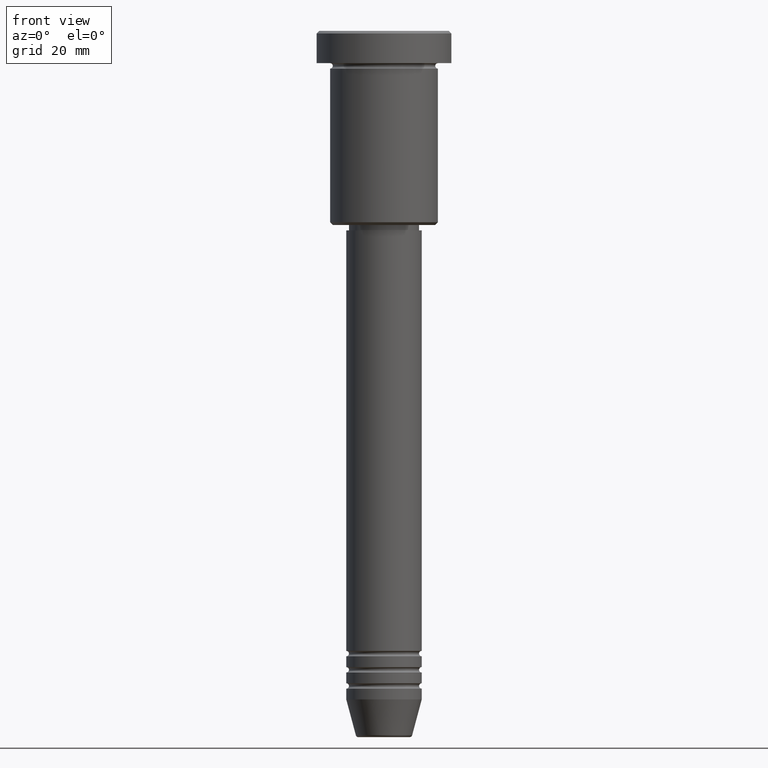
[diagram: clean part render]
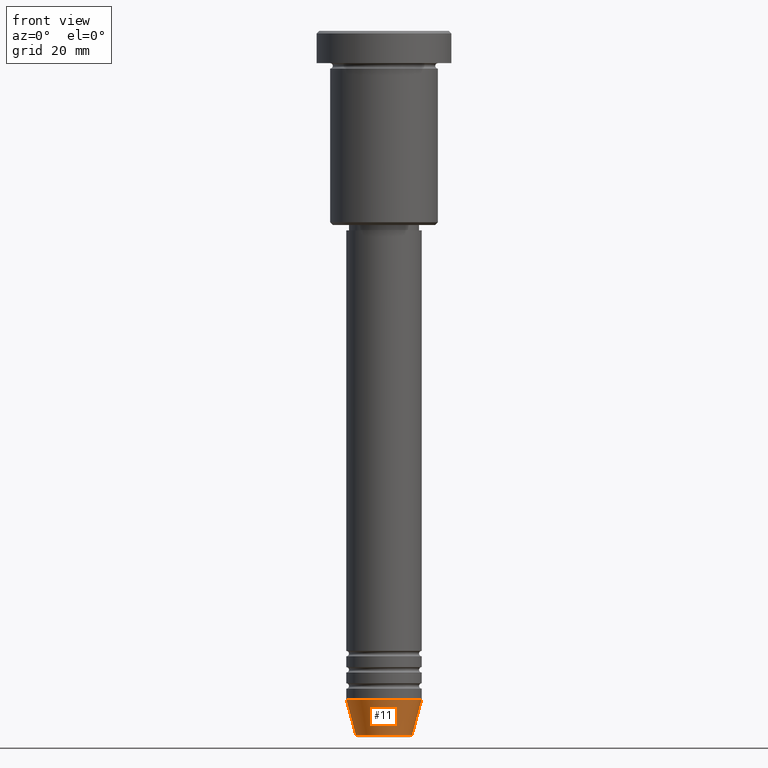
[diagram: same view with one face highlighted and labeled with its STEP entity id]
A machine part, front view. The second image highlights one B-rep face of the part: STEP entity #11.
In plain terms, the highlighted conical surface has half-angle 15 deg.
Its self-contained STEP definition (entity closure, byte-faithful):
#11 = ADVANCED_FACE ( 'NONE', ( #1072 ), #393, .T. ) ;
#14 = CARTESIAN_POINT ( 'NONE',  ( 7.000000000000000000, 0.000000000000000000, -124.0000000000000000 ) ) ;
#21 = AXIS2_PLACEMENT_3D ( 'NONE', #850, #758, #1107 ) ;
#27 = ORIENTED_EDGE ( 'NONE', *, *, #733, .T. ) ;
#51 = VECTOR ( 'NONE', #729, 1000.000000000000000 ) ;
#62 = LINE ( 'NONE', #446, #125 ) ;
#72 = EDGE_CURVE ( 'NONE', #1039, #1138, #62, .T. ) ;
#75 = DIRECTION ( 'NONE',  ( -0.000000000000000000, -0.000000000000000000, 1.000000000000000000 ) ) ;
#108 = EDGE_CURVE ( 'NONE', #342, #737, #710, .T. ) ;
#125 = VECTOR ( 'NONE', #513, 1000.000000000000000 ) ;
#267 = AXIS2_PLACEMENT_3D ( 'NONE', #807, #75, #337 ) ;
#332 = CARTESIAN_POINT ( 'NONE',  ( 0.000000000000000000, 0.000000000000000000, -124.0000000000000000 ) ) ;
#337 = DIRECTION ( 'NONE',  ( 1.000000000000000000, 0.000000000000000000, 0.000000000000000000 ) ) ;
#342 = VERTEX_POINT ( 'NONE', #967 ) ;
#348 = CARTESIAN_POINT ( 'NONE',  ( -7.000000000000000000, 8.572527594031473190E-16, -124.0000000000000000 ) ) ;
#393 = CONICAL_SURFACE ( 'NONE', #1070, 7.000000000000000000, 0.2617993877991501295 ) ;
#446 = CARTESIAN_POINT ( 'NONE',  ( -7.000000000000000000, 8.572527594031473190E-16, -124.0000000000000000 ) ) ;
#476 = ORIENTED_EDGE ( 'NONE', *, *, #603, .F. ) ;
#492 = ORIENTED_EDGE ( 'NONE', *, *, #72, .F. ) ;
#513 = DIRECTION ( 'NONE',  ( -0.2588190451025214056, 3.169619151431772953E-17, 0.9659258262890680902 ) ) ;
#522 = DIRECTION ( 'NONE',  ( 1.000000000000000000, 0.000000000000000000, 0.000000000000000000 ) ) ;
#526 = DIRECTION ( 'NONE',  ( -0.000000000000000000, -0.000000000000000000, 1.000000000000000000 ) ) ;
#603 = EDGE_CURVE ( 'NONE', #1138, #737, #941, .T. ) ;
#653 = ORIENTED_EDGE ( 'NONE', *, *, #108, .T. ) ;
#710 = LINE ( 'NONE', #1082, #51 ) ;
#729 = DIRECTION ( 'NONE',  ( 0.2588190451025214056, 0.000000000000000000, 0.9659258262890680902 ) ) ;
#733 = EDGE_CURVE ( 'NONE', #1039, #342, #962, .T. ) ;
#737 = VERTEX_POINT ( 'NONE', #14 ) ;
#758 = DIRECTION ( 'NONE',  ( -0.000000000000000000, -0.000000000000000000, 1.000000000000000000 ) ) ;
#807 = CARTESIAN_POINT ( 'NONE',  ( 0.000000000000000000, 0.000000000000000000, -124.0000000000000000 ) ) ;
#850 = CARTESIAN_POINT ( 'NONE',  ( 0.000000000000000000, 0.000000000000000000, -130.6294095225512422 ) ) ;
#941 = CIRCLE ( 'NONE', #267, 7.000000000000000000 ) ;
#962 = CIRCLE ( 'NONE', #21, 5.223655072137191269 ) ;
#967 = CARTESIAN_POINT ( 'NONE',  ( 5.223655072137191269, 0.000000000000000000, -130.6294095225512422 ) ) ;
#1000 = EDGE_LOOP ( 'NONE', ( #492, #27, #653, #476 ) ) ;
#1039 = VERTEX_POINT ( 'NONE', #1173 ) ;
#1070 = AXIS2_PLACEMENT_3D ( 'NONE', #332, #526, #522 ) ;
#1072 = FACE_OUTER_BOUND ( 'NONE', #1000, .T. ) ;
#1082 = CARTESIAN_POINT ( 'NONE',  ( 7.000000000000000000, 0.000000000000000000, -124.0000000000000000 ) ) ;
#1107 = DIRECTION ( 'NONE',  ( 1.000000000000000000, 0.000000000000000000, 0.000000000000000000 ) ) ;
#1138 = VERTEX_POINT ( 'NONE', #348 ) ;
#1173 = CARTESIAN_POINT ( 'NONE',  ( -5.223655072137191269, 7.484830028987061160E-16, -130.6294095225512422 ) ) ;